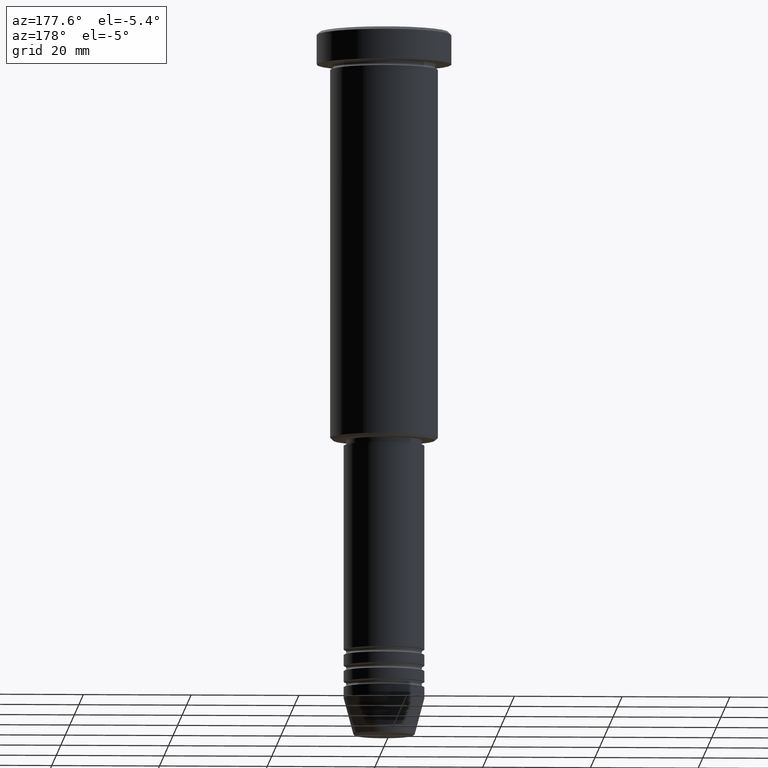
[diagram: clean part render]
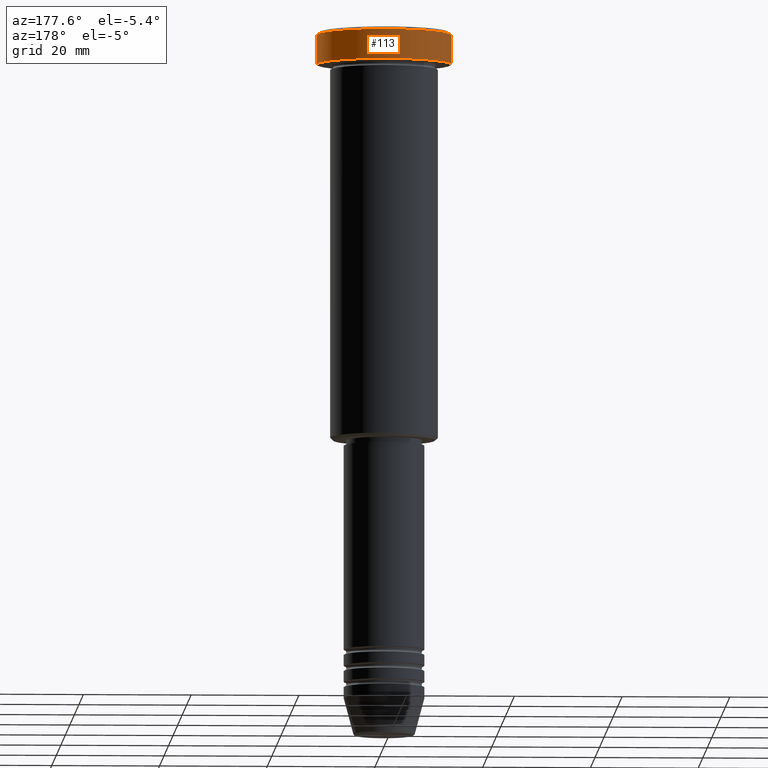
[diagram: same view with one face highlighted and labeled with its STEP entity id]
A machine part, auxiliary view. The second image highlights one B-rep face of the part: STEP entity #113.
In plain terms, the highlighted cylindrical surface (partial cylindrical patch) has radius 12.5 mm, axis along (-0, -0, 1).
Its self-contained STEP definition (entity closure, byte-faithful):
#12 = CARTESIAN_POINT ( 'NONE',  ( 0.000000000000000000, 0.000000000000000000, -0.4999999999999917843 ) ) ;
#32 = DIRECTION ( 'NONE',  ( 0.000000000000000000, 0.000000000000000000, -1.000000000000000000 ) ) ;
#42 = EDGE_LOOP ( 'NONE', ( #845, #247, #661, #80 ) ) ;
#48 = CARTESIAN_POINT ( 'NONE',  ( -12.50000000000000000, 1.530808498934191521E-15, -5.999999999999996447 ) ) ;
#80 = ORIENTED_EDGE ( 'NONE', *, *, #1005, .F. ) ;
#113 = ADVANCED_FACE ( 'NONE', ( #309 ), #136, .T. ) ;
#136 = CYLINDRICAL_SURFACE ( 'NONE', #855, 12.50000000000000000 ) ;
#168 = DIRECTION ( 'NONE',  ( -0.000000000000000000, -0.000000000000000000, 1.000000000000000000 ) ) ;
#175 = CARTESIAN_POINT ( 'NONE',  ( 0.000000000000000000, 0.000000000000000000, -5.999999999999996447 ) ) ;
#201 = EDGE_CURVE ( 'NONE', #933, #344, #431, .T. ) ;
#204 = CARTESIAN_POINT ( 'NONE',  ( 12.50000000000000000, 0.000000000000000000, -5.999999999999996447 ) ) ;
#208 = VECTOR ( 'NONE', #883, 1000.000000000000000 ) ;
#221 = DIRECTION ( 'NONE',  ( 1.000000000000000000, 0.000000000000000000, 0.000000000000000000 ) ) ;
#247 = ORIENTED_EDGE ( 'NONE', *, *, #201, .T. ) ;
#303 = EDGE_CURVE ( 'NONE', #566, #933, #1161, .T. ) ;
#305 = CIRCLE ( 'NONE', #967, 12.50000000000000000 ) ;
#309 = FACE_OUTER_BOUND ( 'NONE', #42, .T. ) ;
#328 = LINE ( 'NONE', #516, #208 ) ;
#344 = VERTEX_POINT ( 'NONE', #384 ) ;
#384 = CARTESIAN_POINT ( 'NONE',  ( -12.50000000000000000, 1.530808498934191521E-15, -0.4999999999999917843 ) ) ;
#431 = LINE ( 'NONE', #797, #606 ) ;
#437 = AXIS2_PLACEMENT_3D ( 'NONE', #175, #168, #910 ) ;
#440 = VERTEX_POINT ( 'NONE', #456 ) ;
#456 = CARTESIAN_POINT ( 'NONE',  ( 12.50000000000000000, 0.000000000000000000, -0.4999999999999917843 ) ) ;
#516 = CARTESIAN_POINT ( 'NONE',  ( 12.50000000000000000, 0.000000000000000000, 0.000000000000000000 ) ) ;
#566 = VERTEX_POINT ( 'NONE', #204 ) ;
#585 = DIRECTION ( 'NONE',  ( -0.000000000000000000, -0.000000000000000000, 1.000000000000000000 ) ) ;
#606 = VECTOR ( 'NONE', #905, 1000.000000000000000 ) ;
#661 = ORIENTED_EDGE ( 'NONE', *, *, #1088, .T. ) ;
#797 = CARTESIAN_POINT ( 'NONE',  ( -12.50000000000000000, 1.530808498934191521E-15, 0.000000000000000000 ) ) ;
#845 = ORIENTED_EDGE ( 'NONE', *, *, #303, .T. ) ;
#855 = AXIS2_PLACEMENT_3D ( 'NONE', #1034, #585, #221 ) ;
#883 = DIRECTION ( 'NONE',  ( -0.000000000000000000, -0.000000000000000000, 1.000000000000000000 ) ) ;
#905 = DIRECTION ( 'NONE',  ( -0.000000000000000000, -0.000000000000000000, 1.000000000000000000 ) ) ;
#910 = DIRECTION ( 'NONE',  ( 1.000000000000000000, 0.000000000000000000, 0.000000000000000000 ) ) ;
#933 = VERTEX_POINT ( 'NONE', #48 ) ;
#967 = AXIS2_PLACEMENT_3D ( 'NONE', #12, #32, #1017 ) ;
#1005 = EDGE_CURVE ( 'NONE', #566, #440, #328, .T. ) ;
#1017 = DIRECTION ( 'NONE',  ( 1.000000000000000000, 0.000000000000000000, 0.000000000000000000 ) ) ;
#1034 = CARTESIAN_POINT ( 'NONE',  ( 0.000000000000000000, 0.000000000000000000, 0.000000000000000000 ) ) ;
#1088 = EDGE_CURVE ( 'NONE', #344, #440, #305, .T. ) ;
#1161 = CIRCLE ( 'NONE', #437, 12.50000000000000000 ) ;